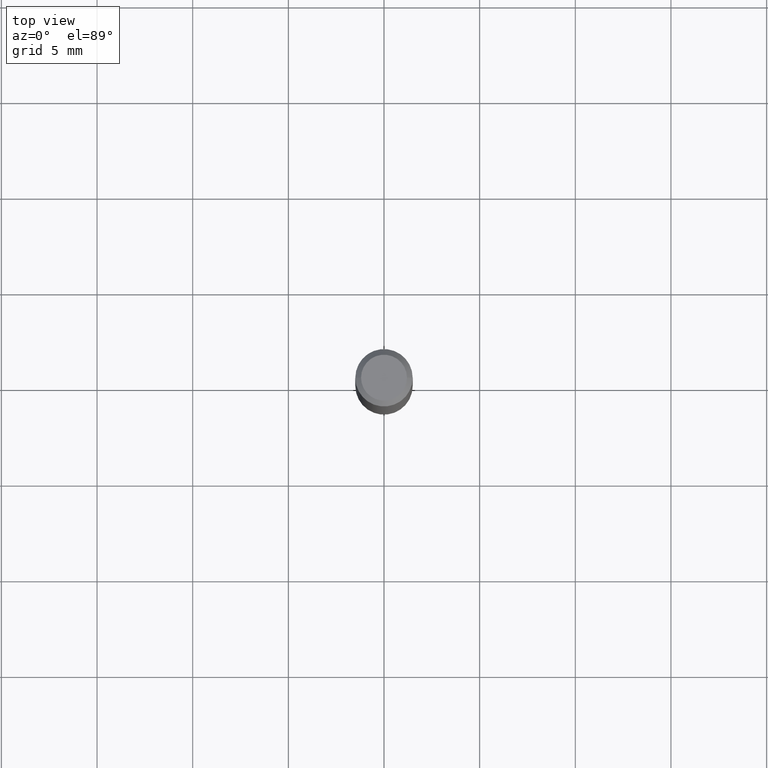
[diagram: clean part render]
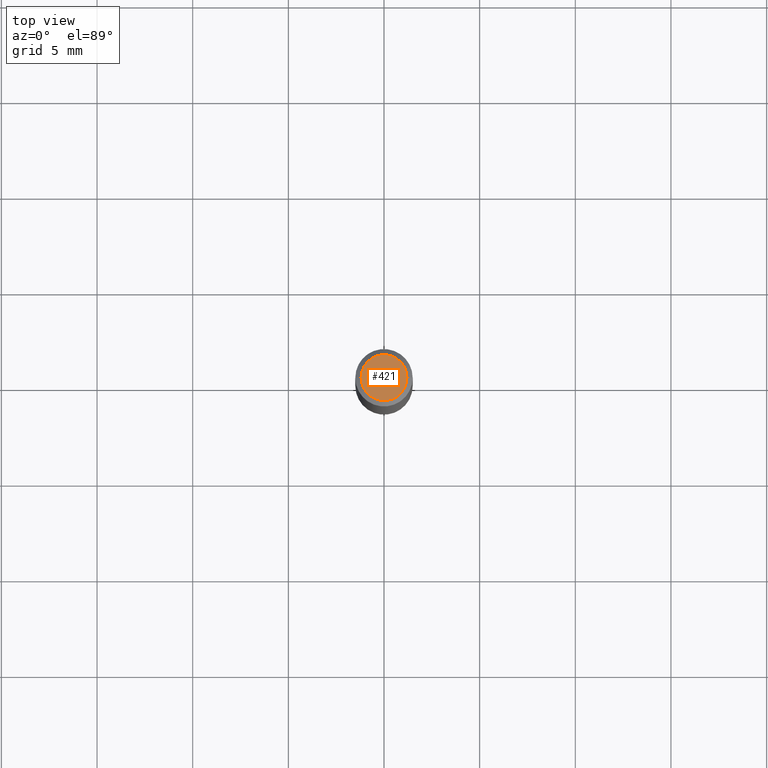
[diagram: same view with one face highlighted and labeled with its STEP entity id]
A machine part, top view. The second image highlights one B-rep face of the part: STEP entity #421.
In plain terms, the highlighted planar face has unit normal (0, -0, -1).
Its self-contained STEP definition (entity closure, byte-faithful):
#6 = CARTESIAN_POINT ( 'NONE',  ( -0.04724000000000000421, 3.504923541997677355E-16, -3.380025165670481712E-19 ) ) ;
#18 = VERTEX_POINT ( 'NONE', #335 ) ;
#43 = EDGE_LOOP ( 'NONE', ( #259, #425 ) ) ;
#47 = DIRECTION ( 'NONE',  ( 2.438088387897960049E-29, -3.491481338843145188E-15, -1.000000000000000000 ) ) ;
#49 = CIRCLE ( 'NONE', #411, 0.04724000000000000421 ) ;
#57 = VERTEX_POINT ( 'NONE', #6 ) ;
#78 = AXIS2_PLACEMENT_3D ( 'NONE', #159, #203, #463 ) ;
#94 = DIRECTION ( 'NONE',  ( -1.000000000000000000, 6.982962677686265922E-15, -4.876176775795935793E-29 ) ) ;
#120 = DIRECTION ( 'NONE',  ( -2.445468806185136597E-29, 3.491481338843145583E-15, 1.000000000000000000 ) ) ;
#123 = EDGE_CURVE ( 'NONE', #18, #57, #49, .T. ) ;
#130 = EDGE_CURVE ( 'NONE', #57, #18, #448, .T. ) ;
#159 = CARTESIAN_POINT ( 'NONE',  ( 8.265746106709734507E-48, -1.180129479067563789E-33, -3.380025165646692144E-19 ) ) ;
#172 = PLANE ( 'NONE',  #196 ) ;
#196 = AXIS2_PLACEMENT_3D ( 'NONE', #242, #47, #94 ) ;
#203 = DIRECTION ( 'NONE',  ( -2.445468806185136597E-29, 3.491481338843145583E-15, 1.000000000000000000 ) ) ;
#242 = CARTESIAN_POINT ( 'NONE',  ( 4.132873053354867254E-48, -5.900647395337818946E-34, -1.690012582823346072E-19 ) ) ;
#259 = ORIENTED_EDGE ( 'NONE', *, *, #130, .T. ) ;
#335 = CARTESIAN_POINT ( 'NONE',  ( 0.04724000000000000421, -3.852183633974369345E-16, -3.380025165621689721E-19 ) ) ;
#359 = FACE_OUTER_BOUND ( 'NONE', #43, .T. ) ;
#411 = AXIS2_PLACEMENT_3D ( 'NONE', #419, #120, #465 ) ;
#419 = CARTESIAN_POINT ( 'NONE',  ( 8.265746106709734507E-48, -1.180129479067563789E-33, -3.380025165646692144E-19 ) ) ;
#421 = ADVANCED_FACE ( 'NONE', ( #359 ), #172, .F. ) ;
#425 = ORIENTED_EDGE ( 'NONE', *, *, #123, .T. ) ;
#448 = CIRCLE ( 'NONE', #78, 0.04724000000000000421 ) ;
#463 = DIRECTION ( 'NONE',  ( 1.000000000000000000, -6.982962677686266711E-15, 4.876185090822587894E-29 ) ) ;
#465 = DIRECTION ( 'NONE',  ( 1.000000000000000000, -6.982962677686266711E-15, 4.876185090822587894E-29 ) ) ;